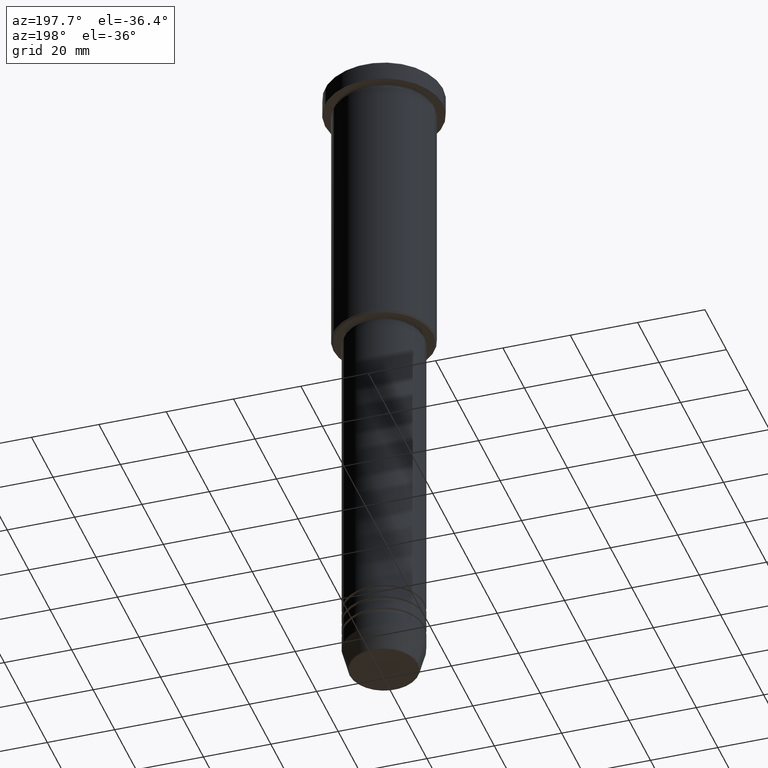
[diagram: clean part render]
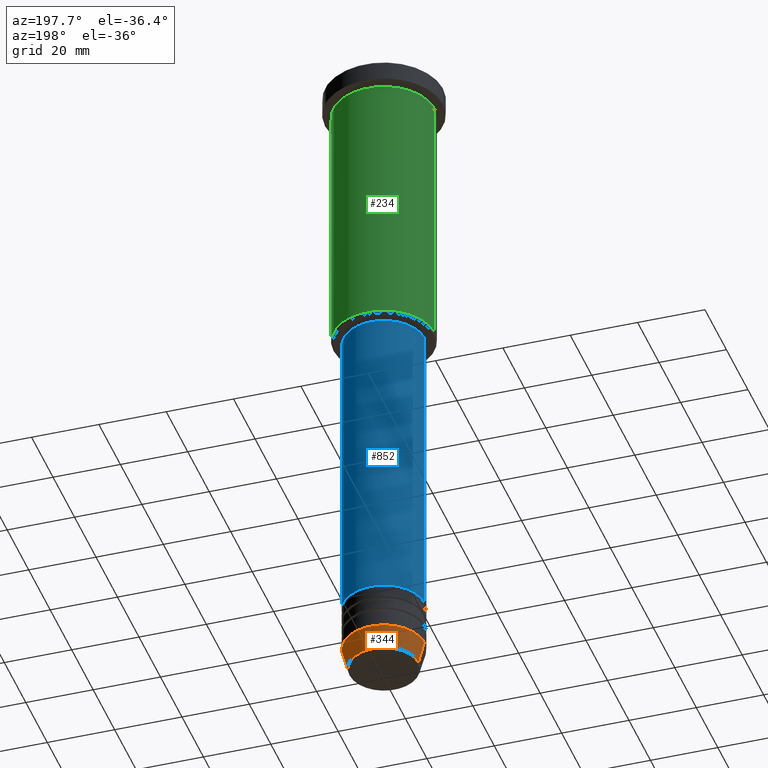
[diagram: same view with three faces highlighted in distinct colors, each labeled with its STEP entity id]
A machine part, auxiliary view with three faces highlighted in distinct colors.
Their STEP definitions:

[orange] entity #344 — the highlighted conical surface has half-angle 15 deg.
#2 = CARTESIAN_POINT ( 'NONE',  ( 0.000000000000000000, 0.000000000000000000, -200.6294095225512706 ) ) ;
#42 = VERTEX_POINT ( 'NONE', #165 ) ;
#50 = CARTESIAN_POINT ( 'NONE',  ( 0.000000000000000000, 0.000000000000000000, -194.0000000000000000 ) ) ;
#101 = VERTEX_POINT ( 'NONE', #975 ) ;
#106 = LINE ( 'NONE', #841, #896 ) ;
#110 = DIRECTION ( 'NONE',  ( -0.000000000000000000, -0.000000000000000000, 1.000000000000000000 ) ) ;
#125 = ORIENTED_EDGE ( 'NONE', *, *, #144, .F. ) ;
#144 = EDGE_CURVE ( 'NONE', #651, #463, #340, .T. ) ;
#165 = CARTESIAN_POINT ( 'NONE',  ( -10.22365507213719127, 1.360806402472382744E-15, -200.6294095225512706 ) ) ;
#182 = AXIS2_PLACEMENT_3D ( 'NONE', #2, #110, #644 ) ;
#225 = FACE_OUTER_BOUND ( 'NONE', #631, .T. ) ;
#255 = DIRECTION ( 'NONE',  ( 0.2588190451025213501, 0.000000000000000000, 0.9659258262890680902 ) ) ;
#275 = CONICAL_SURFACE ( 'NONE', #592, 12.00000000000000000, 0.2617993877991500740 ) ;
#287 = EDGE_CURVE ( 'NONE', #651, #42, #408, .T. ) ;
#334 = CARTESIAN_POINT ( 'NONE',  ( 12.00000000000000000, 0.000000000000000000, -194.0000000000000000 ) ) ;
#340 = LINE ( 'NONE', #334, #456 ) ;
#344 = ADVANCED_FACE ( 'NONE', ( #225 ), #275, .T. ) ;
#392 = AXIS2_PLACEMENT_3D ( 'NONE', #974, #422, #517 ) ;
#408 = CIRCLE ( 'NONE', #182, 10.22365507213719127 ) ;
#409 = ORIENTED_EDGE ( 'NONE', *, *, #582, .F. ) ;
#413 = CARTESIAN_POINT ( 'NONE',  ( 12.00000000000000000, 0.000000000000000000, -194.0000000000000000 ) ) ;
#421 = ORIENTED_EDGE ( 'NONE', *, *, #287, .T. ) ;
#422 = DIRECTION ( 'NONE',  ( -0.000000000000000000, -0.000000000000000000, 1.000000000000000000 ) ) ;
#456 = VECTOR ( 'NONE', #255, 1000.000000000000000 ) ;
#463 = VERTEX_POINT ( 'NONE', #413 ) ;
#476 = DIRECTION ( 'NONE',  ( -0.000000000000000000, -0.000000000000000000, 1.000000000000000000 ) ) ;
#517 = DIRECTION ( 'NONE',  ( 1.000000000000000000, 0.000000000000000000, 0.000000000000000000 ) ) ;
#582 = EDGE_CURVE ( 'NONE', #463, #101, #952, .T. ) ;
#592 = AXIS2_PLACEMENT_3D ( 'NONE', #50, #476, #677 ) ;
#631 = EDGE_LOOP ( 'NONE', ( #421, #839, #409, #125 ) ) ;
#644 = DIRECTION ( 'NONE',  ( 1.000000000000000000, 0.000000000000000000, 0.000000000000000000 ) ) ;
#651 = VERTEX_POINT ( 'NONE', #915 ) ;
#677 = DIRECTION ( 'NONE',  ( 1.000000000000000000, 0.000000000000000000, 0.000000000000000000 ) ) ;
#839 = ORIENTED_EDGE ( 'NONE', *, *, #1169, .T. ) ;
#841 = CARTESIAN_POINT ( 'NONE',  ( -12.00000000000000000, 1.469576158976823947E-15, -194.0000000000000000 ) ) ;
#896 = VECTOR ( 'NONE', #1116, 1000.000000000000000 ) ;
#915 = CARTESIAN_POINT ( 'NONE',  ( 10.22365507213719127, 0.000000000000000000, -200.6294095225512706 ) ) ;
#952 = CIRCLE ( 'NONE', #392, 12.00000000000000000 ) ;
#974 = CARTESIAN_POINT ( 'NONE',  ( 0.000000000000000000, 0.000000000000000000, -194.0000000000000000 ) ) ;
#975 = CARTESIAN_POINT ( 'NONE',  ( -12.00000000000000000, 1.469576158976823947E-15, -194.0000000000000000 ) ) ;
#1116 = DIRECTION ( 'NONE',  ( -0.2588190451025213501, 3.169619151431772337E-17, 0.9659258262890680902 ) ) ;
#1169 = EDGE_CURVE ( 'NONE', #42, #101, #106, .T. ) ;

[blue] entity #852 — the highlighted cylindrical surface (partial cylindrical patch) has radius 12 mm, axis along (-0, -0, 1).
#17 = AXIS2_PLACEMENT_3D ( 'NONE', #731, #369, #549 ) ;
#24 = ORIENTED_EDGE ( 'NONE', *, *, #812, .F. ) ;
#105 = EDGE_LOOP ( 'NONE', ( #1103, #871, #1063, #24 ) ) ;
#203 = VECTOR ( 'NONE', #869, 1000.000000000000000 ) ;
#211 = DIRECTION ( 'NONE',  ( 1.000000000000000000, 0.000000000000000000, 0.000000000000000000 ) ) ;
#215 = VERTEX_POINT ( 'NONE', #357 ) ;
#257 = CARTESIAN_POINT ( 'NONE',  ( 12.00000000000000000, 0.000000000000000000, -179.9999999999999147 ) ) ;
#333 = VECTOR ( 'NONE', #662, 1000.000000000000000 ) ;
#357 = CARTESIAN_POINT ( 'NONE',  ( -12.00000000000000000, 1.469576158976823947E-15, -87.00000000000004263 ) ) ;
#369 = DIRECTION ( 'NONE',  ( -0.000000000000000000, -0.000000000000000000, 1.000000000000000000 ) ) ;
#396 = CIRCLE ( 'NONE', #17, 12.00000000000000000 ) ;
#404 = EDGE_CURVE ( 'NONE', #641, #215, #754, .T. ) ;
#535 = DIRECTION ( 'NONE',  ( -0.000000000000000000, -0.000000000000000000, 1.000000000000000000 ) ) ;
#549 = DIRECTION ( 'NONE',  ( 1.000000000000000000, 0.000000000000000000, 0.000000000000000000 ) ) ;
#571 = DIRECTION ( 'NONE',  ( -0.000000000000000000, -0.000000000000000000, 1.000000000000000000 ) ) ;
#579 = FACE_OUTER_BOUND ( 'NONE', #105, .T. ) ;
#602 = CIRCLE ( 'NONE', #819, 12.00000000000000000 ) ;
#641 = VERTEX_POINT ( 'NONE', #835 ) ;
#662 = DIRECTION ( 'NONE',  ( -0.000000000000000000, -0.000000000000000000, 1.000000000000000000 ) ) ;
#693 = VERTEX_POINT ( 'NONE', #1081 ) ;
#708 = EDGE_CURVE ( 'NONE', #693, #215, #396, .T. ) ;
#715 = EDGE_CURVE ( 'NONE', #1013, #641, #602, .T. ) ;
#731 = CARTESIAN_POINT ( 'NONE',  ( 0.000000000000000000, 0.000000000000000000, -87.00000000000004263 ) ) ;
#754 = LINE ( 'NONE', #780, #203 ) ;
#773 = CARTESIAN_POINT ( 'NONE',  ( 0.000000000000000000, 0.000000000000000000, 0.000000000000000000 ) ) ;
#780 = CARTESIAN_POINT ( 'NONE',  ( -12.00000000000000000, 1.469576158976823947E-15, 0.000000000000000000 ) ) ;
#812 = EDGE_CURVE ( 'NONE', #1013, #693, #1131, .T. ) ;
#819 = AXIS2_PLACEMENT_3D ( 'NONE', #995, #535, #926 ) ;
#835 = CARTESIAN_POINT ( 'NONE',  ( -12.00000000000000000, 1.469576158976823947E-15, -179.9999999999999147 ) ) ;
#852 = ADVANCED_FACE ( 'NONE', ( #579 ), #938, .T. ) ;
#869 = DIRECTION ( 'NONE',  ( -0.000000000000000000, -0.000000000000000000, 1.000000000000000000 ) ) ;
#871 = ORIENTED_EDGE ( 'NONE', *, *, #404, .T. ) ;
#895 = AXIS2_PLACEMENT_3D ( 'NONE', #773, #571, #211 ) ;
#926 = DIRECTION ( 'NONE',  ( 1.000000000000000000, 0.000000000000000000, 0.000000000000000000 ) ) ;
#938 = CYLINDRICAL_SURFACE ( 'NONE', #895, 12.00000000000000000 ) ;
#995 = CARTESIAN_POINT ( 'NONE',  ( 0.000000000000000000, 0.000000000000000000, -179.9999999999999147 ) ) ;
#1013 = VERTEX_POINT ( 'NONE', #257 ) ;
#1038 = CARTESIAN_POINT ( 'NONE',  ( 12.00000000000000000, 0.000000000000000000, 0.000000000000000000 ) ) ;
#1063 = ORIENTED_EDGE ( 'NONE', *, *, #708, .F. ) ;
#1081 = CARTESIAN_POINT ( 'NONE',  ( 12.00000000000000000, 0.000000000000000000, -87.00000000000004263 ) ) ;
#1103 = ORIENTED_EDGE ( 'NONE', *, *, #715, .T. ) ;
#1131 = LINE ( 'NONE', #1038, #333 ) ;

[green] entity #234 — the highlighted cylindrical surface (partial cylindrical patch) has radius 15 mm, axis along (-0, -0, 1).
#23 = CYLINDRICAL_SURFACE ( 'NONE', #1133, 15.00000000000000000 ) ;
#157 = DIRECTION ( 'NONE',  ( -0.000000000000000000, -0.000000000000000000, 1.000000000000000000 ) ) ;
#184 = DIRECTION ( 'NONE',  ( -0.000000000000000000, -0.000000000000000000, 1.000000000000000000 ) ) ;
#207 = CARTESIAN_POINT ( 'NONE',  ( 0.000000000000000000, 0.000000000000000000, -6.999999999999995559 ) ) ;
#216 = LINE ( 'NONE', #948, #374 ) ;
#234 = ADVANCED_FACE ( 'NONE', ( #727 ), #23, .T. ) ;
#253 = EDGE_CURVE ( 'NONE', #329, #1009, #890, .T. ) ;
#272 = CARTESIAN_POINT ( 'NONE',  ( 0.000000000000000000, 0.000000000000000000, -85.50000000000000000 ) ) ;
#279 = AXIS2_PLACEMENT_3D ( 'NONE', #207, #157, #406 ) ;
#307 = ORIENTED_EDGE ( 'NONE', *, *, #1154, .T. ) ;
#329 = VERTEX_POINT ( 'NONE', #944 ) ;
#342 = CARTESIAN_POINT ( 'NONE',  ( -15.00000000000000000, 1.836970198721029589E-15, -85.50000000000000000 ) ) ;
#374 = VECTOR ( 'NONE', #1089, 1000.000000000000000 ) ;
#406 = DIRECTION ( 'NONE',  ( 1.000000000000000000, 0.000000000000000000, 0.000000000000000000 ) ) ;
#453 = CARTESIAN_POINT ( 'NONE',  ( -15.00000000000000000, 1.836970198721029589E-15, 0.000000000000000000 ) ) ;
#473 = CARTESIAN_POINT ( 'NONE',  ( -15.00000000000000000, 1.836970198721029589E-15, -6.999999999999995559 ) ) ;
#478 = LINE ( 'NONE', #453, #971 ) ;
#486 = EDGE_LOOP ( 'NONE', ( #505, #307, #638, #1025 ) ) ;
#505 = ORIENTED_EDGE ( 'NONE', *, *, #253, .T. ) ;
#546 = DIRECTION ( 'NONE',  ( -0.000000000000000000, -0.000000000000000000, 1.000000000000000000 ) ) ;
#550 = DIRECTION ( 'NONE',  ( -1.000000000000000000, 0.000000000000000000, 0.000000000000000000 ) ) ;
#638 = ORIENTED_EDGE ( 'NONE', *, *, #844, .F. ) ;
#640 = DIRECTION ( 'NONE',  ( -0.000000000000000000, -0.000000000000000000, 1.000000000000000000 ) ) ;
#727 = FACE_OUTER_BOUND ( 'NONE', #486, .T. ) ;
#746 = CARTESIAN_POINT ( 'NONE',  ( 15.00000000000000000, 0.000000000000000000, -6.999999999999995559 ) ) ;
#784 = VERTEX_POINT ( 'NONE', #746 ) ;
#844 = EDGE_CURVE ( 'NONE', #784, #1108, #1161, .T. ) ;
#890 = CIRCLE ( 'NONE', #1058, 15.00000000000000000 ) ;
#923 = EDGE_CURVE ( 'NONE', #329, #784, #216, .T. ) ;
#934 = DIRECTION ( 'NONE',  ( 1.000000000000000000, 0.000000000000000000, 0.000000000000000000 ) ) ;
#944 = CARTESIAN_POINT ( 'NONE',  ( 15.00000000000000000, 0.000000000000000000, -85.50000000000000000 ) ) ;
#948 = CARTESIAN_POINT ( 'NONE',  ( 15.00000000000000000, 0.000000000000000000, 0.000000000000000000 ) ) ;
#971 = VECTOR ( 'NONE', #640, 1000.000000000000000 ) ;
#1009 = VERTEX_POINT ( 'NONE', #342 ) ;
#1025 = ORIENTED_EDGE ( 'NONE', *, *, #923, .F. ) ;
#1058 = AXIS2_PLACEMENT_3D ( 'NONE', #272, #546, #550 ) ;
#1087 = CARTESIAN_POINT ( 'NONE',  ( 0.000000000000000000, 0.000000000000000000, 0.000000000000000000 ) ) ;
#1089 = DIRECTION ( 'NONE',  ( -0.000000000000000000, -0.000000000000000000, 1.000000000000000000 ) ) ;
#1108 = VERTEX_POINT ( 'NONE', #473 ) ;
#1133 = AXIS2_PLACEMENT_3D ( 'NONE', #1087, #184, #934 ) ;
#1154 = EDGE_CURVE ( 'NONE', #1009, #1108, #478, .T. ) ;
#1161 = CIRCLE ( 'NONE', #279, 15.00000000000000000 ) ;